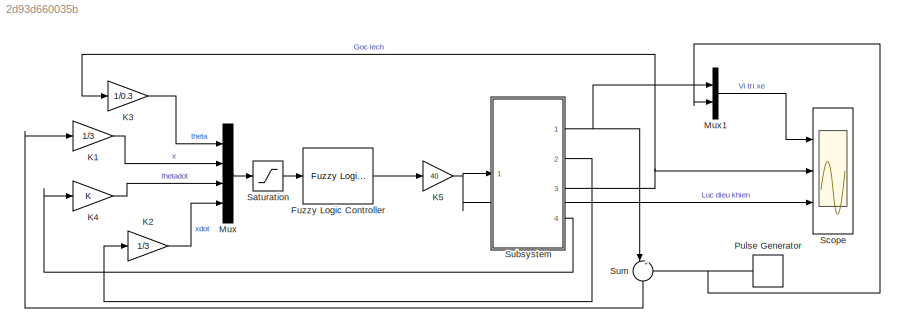
MODEL slx_2d93d660035b
KIND model
CONFIG AbsTol = auto
CONFIG EnableMultiTasking = off
CONFIG FixedStep = 0.001
CONFIG MaxStep = auto
CONFIG MinStep = auto
CONFIG RelTol = 1e-3
CONFIG SampleTimeConstraint = Unconstrained
CONFIG Solver = ode5
CONFIG SolverName = ode5
CONFIG StartTime = 0.0
CONFIG StopTime = 20
BLOCK [Reference] Fuzzy Logic Controller  REF=fuzblock/Fuzzy Logic   (lib defined in mdl_858b3b3e7478)
Controller
  Ports = [1, 1]
  SourceBlock = fuzblock/Fuzzy Logic \nController
  SourceProductBaseCode = FL
  SourceProductName = Fuzzy Logic Toolbox
  SourceType = Fuzzy Inference System
BLOCK [Gain] K1
  Gain = 1/3
  OutDataTypeStr = Inherit: Inherit via internal rule
  ParamDataTypeStr = Inherit: Inherit via internal rule
  SaturateOnIntegerOverflow = off
BLOCK [Gain] K2
  Gain = 1/3
  OutDataTypeStr = Inherit: Inherit via internal rule
  ParamDataTypeStr = Inherit: Inherit via internal rule
  SaturateOnIntegerOverflow = off
BLOCK [Gain] K3
  Gain = 1/0.3
  OutDataTypeStr = Inherit: Inherit via internal rule
  ParamDataTypeStr = Inherit: Inherit via internal rule
  SaturateOnIntegerOverflow = off
BLOCK [Gain] K4
  OutDataTypeStr = Inherit: Inherit via internal rule
  ParamDataTypeStr = Inherit: Inherit via internal rule
  SaturateOnIntegerOverflow = off
BLOCK [Gain] K5
  Gain = 40
  OutDataTypeStr = Inherit: Inherit via internal rule
  ParamDataTypeStr = Inherit: Inherit via internal rule
  SaturateOnIntegerOverflow = off
BLOCK [Mux] Mux
  DisplayOption = bar
  Ports = [4, 1]
BLOCK [Mux] Mux1
  DisplayOption = bar
  Inputs = 2
  Ports = [2, 1]
BLOCK [DiscretePulseGenerator] Pulse Generator
  Period = 20
  Ports = [0, 1]
  PulseType = Time based
  PulseWidth = 50
BLOCK [Saturate] Saturation
  InputPortMap = u0
  LowerLimit = -1
  Ports = [1, 1]
  UpperLimit = 1
BLOCK [Scope] Scope
  Floating = off
  NumInputPorts = 3
  Ports = [3]
  ScopeSpecificationString = Simulink.scopes.TimeScopeBlockCfg('CurrentConfiguration', extmgr.ConfigurationSet(extmgr.Configuration('Core','General UI',true,'FigureColor',[1 1 1]),extmgr.Configuration('Core','Source UI',true),extmgr.Configuration('Sources','WiredSimulink',true),extmgr.Configuration('Visuals','Time Domain',true,'SerializedDisplays',{struct('MinYLimReal','-0.60897','MaxYLimReal','2.80022','YLabelReal','','MinYL...<+3229ch>
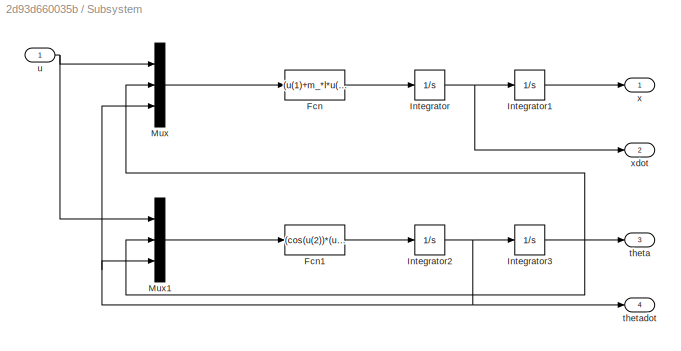
BLOCK [SubSystem] Subsystem
  Ports = [1, 4]
  RequestExecContextInheritance = off
BLOCK [Fcn] Subsystem/Fcn
  Expr = (u(1)+m_*l*u(3)^2*sin(u(2))-m_*g*sin(u(2))*cos(u(2)))/(M+m_-m_*cos(u(2))^2)
BLOCK [Fcn] Subsystem/Fcn1
  Expr = (cos(u(2))*(u(1)+m_*g*u(3)^2*sin(u(2)))-(M+m_)*(g*sin(u(2))))/(m_*l*cos(u(2))^2-(M+m_)*l)
BLOCK [Integrator] Subsystem/Integrator
  InitialCondition = xdot0
  Ports = [1, 1]
BLOCK [Integrator] Subsystem/Integrator1
  InitialCondition = x0
  Ports = [1, 1]
BLOCK [Integrator] Subsystem/Integrator2
  InitialCondition = thetadot0
  Ports = [1, 1]
BLOCK [Integrator] Subsystem/Integrator3
  InitialCondition = theta0
  Ports = [1, 1]
BLOCK [Mux] Subsystem/Mux
  DisplayOption = bar
  Inputs = 3
  Ports = [3, 1]
BLOCK [Mux] Subsystem/Mux1
  DisplayOption = bar
  Inputs = 3
  Ports = [3, 1]
BLOCK [Outport] Subsystem/theta
  IconDisplay = Port number
  Port = 3
BLOCK [Outport] Subsystem/thetadot
  IconDisplay = Port number
  Port = 4
BLOCK [Inport] Subsystem/u
  IconDisplay = Port number
BLOCK [Outport] Subsystem/x
  IconDisplay = Port number
BLOCK [Outport] Subsystem/xdot
  IconDisplay = Port number
  Port = 2
BLOCK [Sum] Sum
  IconShape = round
  InputSameDT = off
  Inputs = |+-
  OutDataTypeStr = Inherit: Inherit via internal rule
  Ports = [2, 1]
  SaturateOnIntegerOverflow = off
LINE Fuzzy Logic Controller:1 -> K5:1
LINE K1:1 -> Mux:2
LINE K2:1 -> Mux:4
LINE K3:1 -> Mux:1
LINE K4:1 -> Mux:3
NET K5:1 -> Scope:3, Subsystem:1
LINE Mux1:1 -> Scope:1
LINE Mux:1 -> Saturation:1
NET Pulse Generator:1 -> Mux1:2, Sum:2
LINE Saturation:1 -> Fuzzy Logic Controller:1
LINE Subsystem/Fcn1:1 -> Subsystem/Integrator2:1
LINE Subsystem/Fcn:1 -> Subsystem/Integrator:1
LINE Subsystem/Integrator1:1 -> Subsystem/x:1
NET Subsystem/Integrator2:1 -> Subsystem/Integrator3:1, Subsystem/Mux1:3, Subsystem/Mux:3, Subsystem/thetadot:1
NET Subsystem/Integrator3:1 -> Subsystem/Mux1:2, Subsystem/Mux:2, Subsystem/theta:1
NET Subsystem/Integrator:1 -> Subsystem/Integrator1:1, Subsystem/xdot:1
LINE Subsystem/Mux1:1 -> Subsystem/Fcn1:1
LINE Subsystem/Mux:1 -> Subsystem/Fcn:1
NET Subsystem/u:1 -> Subsystem/Mux1:1, Subsystem/Mux:1
NET Subsystem:1 -> Mux1:1, Sum:1
LINE Subsystem:2 -> K2:1
NET Subsystem:3 -> K3:1, Scope:2
LINE Subsystem:4 -> K4:1
LINE Sum:1 -> K1:1
note: NET lines group one-source signal fan-out (src -> all destinations, sorted); 1:1 wires keep LINE
